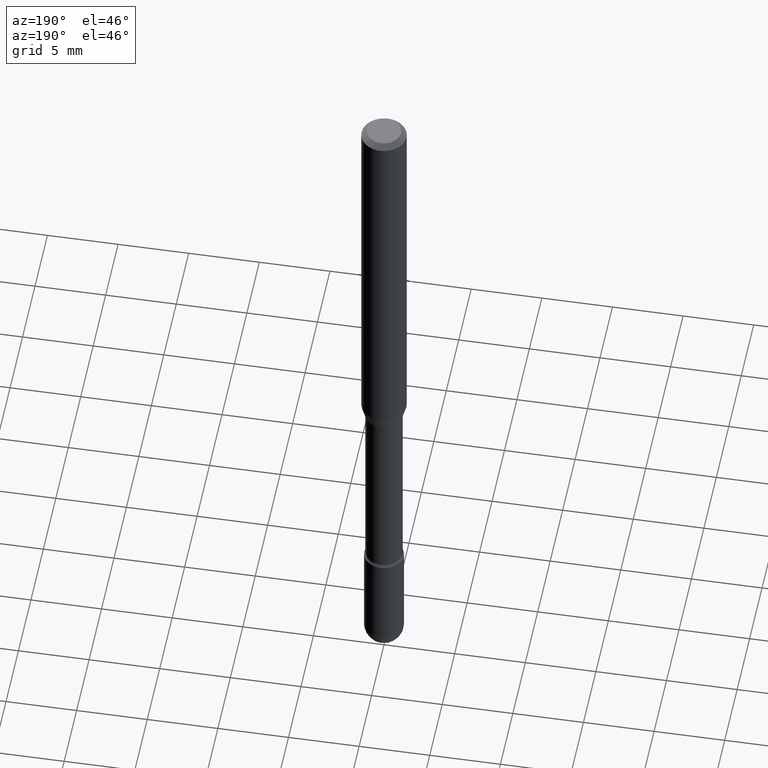
[diagram: clean part render]
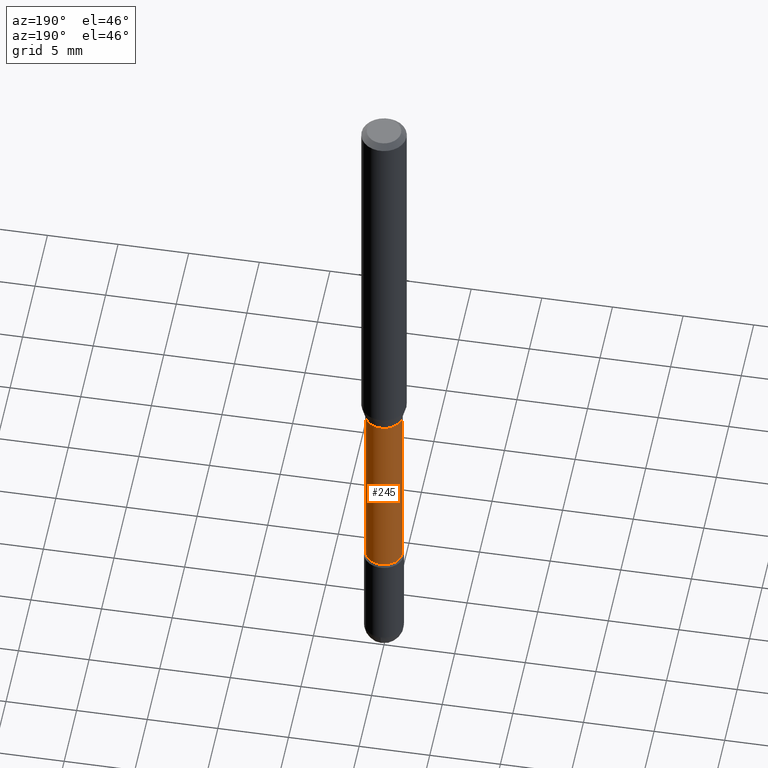
[diagram: same view with one face highlighted and labeled with its STEP entity id]
A machine part, auxiliary view. The second image highlights one B-rep face of the part: STEP entity #245.
In plain terms, the highlighted cylindrical surface (edge-blend (fillet) strip) has radius 1.3132 mm, axis along (-0, 0, 1).
Its self-contained STEP definition (entity closure, byte-faithful):
#5 = DIRECTION ( 'NONE',  ( 1.000000000000000000, -6.982962677686265922E-15, 0.000000000000000000 ) ) ;
#10 = CARTESIAN_POINT ( 'NONE',  ( 2.743754344068947151E-29, -3.917354033082399546E-15, -1.121974787463810630 ) ) ;
#19 = CARTESIAN_POINT ( 'NONE',  ( -1.169113584055446105E-44, 1.669184350826100908E-30, 4.780733988912460139E-16 ) ) ;
#27 = EDGE_CURVE ( 'NONE', #485, #72, #457, .T. ) ;
#36 = CARTESIAN_POINT ( 'NONE',  ( 0.05169999999999999596, -4.278373203518779106E-15, -1.121974787463810630 ) ) ;
#37 = CIRCLE ( 'NONE', #249, 0.05169999999999999596 ) ;
#63 = DIRECTION ( 'NONE',  ( -2.445468806185136597E-29, 3.491481338843145583E-15, 1.000000000000000000 ) ) ;
#72 = VERTEX_POINT ( 'NONE', #36 ) ;
#80 = CARTESIAN_POINT ( 'NONE',  ( 0.05169999999999999596, -6.159019543879958449E-15, -1.660613307291702645 ) ) ;
#87 = CARTESIAN_POINT ( 'NONE',  ( -0.05169999999999999596, -5.435312555127801674E-15, -1.660613307291702645 ) ) ;
#101 = ORIENTED_EDGE ( 'NONE', *, *, #299, .T. ) ;
#128 = DIRECTION ( 'NONE',  ( 1.000000000000000000, -6.982962677686275388E-15, 0.000000000000000000 ) ) ;
#139 = VECTOR ( 'NONE', #463, 39.37007874015748143 ) ;
#176 = CARTESIAN_POINT ( 'NONE',  ( -0.05169999999999999596, -4.490326608875016858E-15, -1.121974787463810630 ) ) ;
#184 = DIRECTION ( 'NONE',  ( -2.445468806185136597E-29, 3.491481338843145583E-15, 1.000000000000000000 ) ) ;
#203 = CARTESIAN_POINT ( 'NONE',  ( -0.05169999999999999596, 3.673505943879734930E-16, 4.780733988912435487E-16 ) ) ;
#208 = CARTESIAN_POINT ( 'NONE',  ( 0.05169999999999999596, -3.610191704363782779E-16, 4.780733988912485777E-16 ) ) ;
#220 = DIRECTION ( 'NONE',  ( -2.445468806185136597E-29, 3.491481338843145583E-15, 1.000000000000000000 ) ) ;
#229 = EDGE_LOOP ( 'NONE', ( #101, #287, #442, #280 ) ) ;
#245 = ADVANCED_FACE ( 'NONE', ( #424 ), #502, .T. ) ;
#249 = AXIS2_PLACEMENT_3D ( 'NONE', #550, #184, #128 ) ;
#257 = DIRECTION ( 'NONE',  ( 1.000000000000000000, -6.982962677686266711E-15, 4.927827573631271447E-29 ) ) ;
#280 = ORIENTED_EDGE ( 'NONE', *, *, #27, .F. ) ;
#287 = ORIENTED_EDGE ( 'NONE', *, *, #435, .T. ) ;
#299 = EDGE_CURVE ( 'NONE', #485, #408, #37, .T. ) ;
#367 = AXIS2_PLACEMENT_3D ( 'NONE', #10, #220, #5 ) ;
#371 = DIRECTION ( 'NONE',  ( -2.445468806185136877E-29, 3.491481338843145188E-15, 1.000000000000000000 ) ) ;
#372 = CIRCLE ( 'NONE', #367, 0.05169999999999999596 ) ;
#397 = EDGE_CURVE ( 'NONE', #72, #553, #372, .T. ) ;
#408 = VERTEX_POINT ( 'NONE', #87 ) ;
#424 = FACE_OUTER_BOUND ( 'NONE', #229, .T. ) ;
#435 = EDGE_CURVE ( 'NONE', #408, #553, #491, .T. ) ;
#442 = ORIENTED_EDGE ( 'NONE', *, *, #397, .F. ) ;
#452 = AXIS2_PLACEMENT_3D ( 'NONE', #19, #63, #257 ) ;
#457 = LINE ( 'NONE', #208, #139 ) ;
#463 = DIRECTION ( 'NONE',  ( -2.445468806185136877E-29, 3.491481338843145188E-15, 1.000000000000000000 ) ) ;
#485 = VERTEX_POINT ( 'NONE', #80 ) ;
#491 = LINE ( 'NONE', #203, #537 ) ;
#502 = CYLINDRICAL_SURFACE ( 'NONE', #452, 0.05169999999999999596 ) ;
#537 = VECTOR ( 'NONE', #371, 39.37007874015748143 ) ;
#550 = CARTESIAN_POINT ( 'NONE',  ( 4.060978042117791300E-29, -5.798000373443578100E-15, -1.660613307291702645 ) ) ;
#553 = VERTEX_POINT ( 'NONE', #176 ) ;